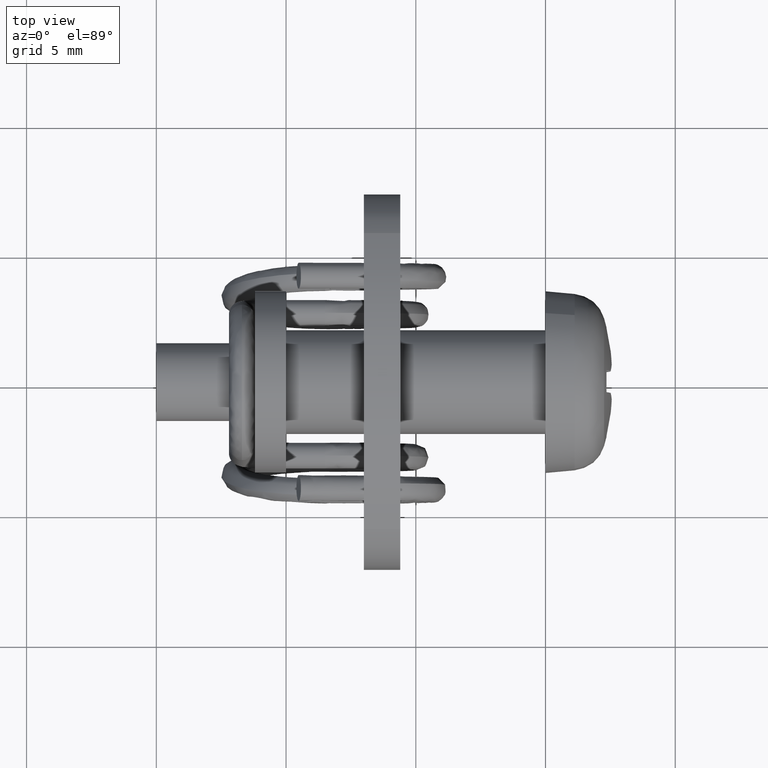
[diagram: clean part render]
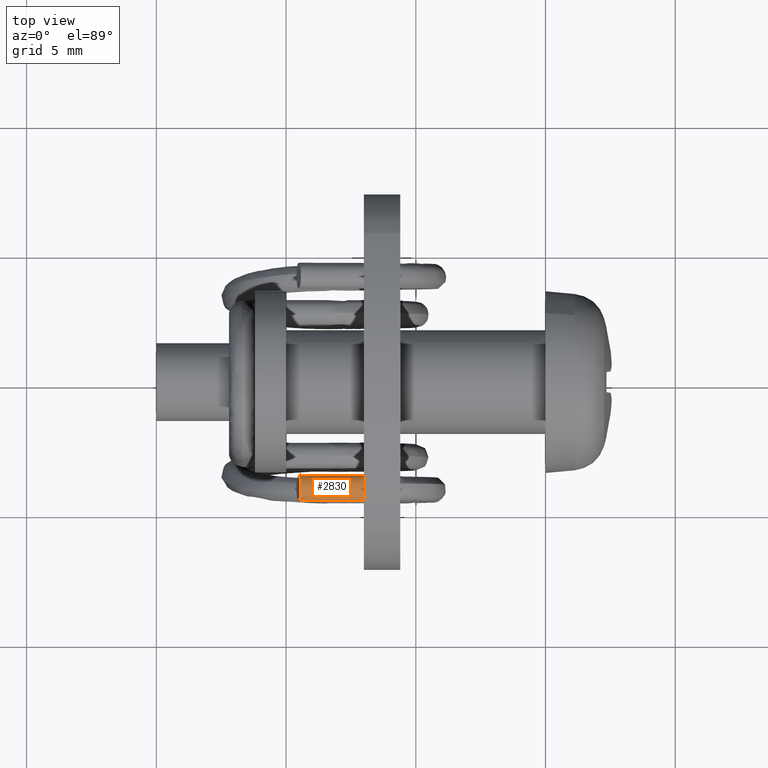
[diagram: same view with one face highlighted and labeled with its STEP entity id]
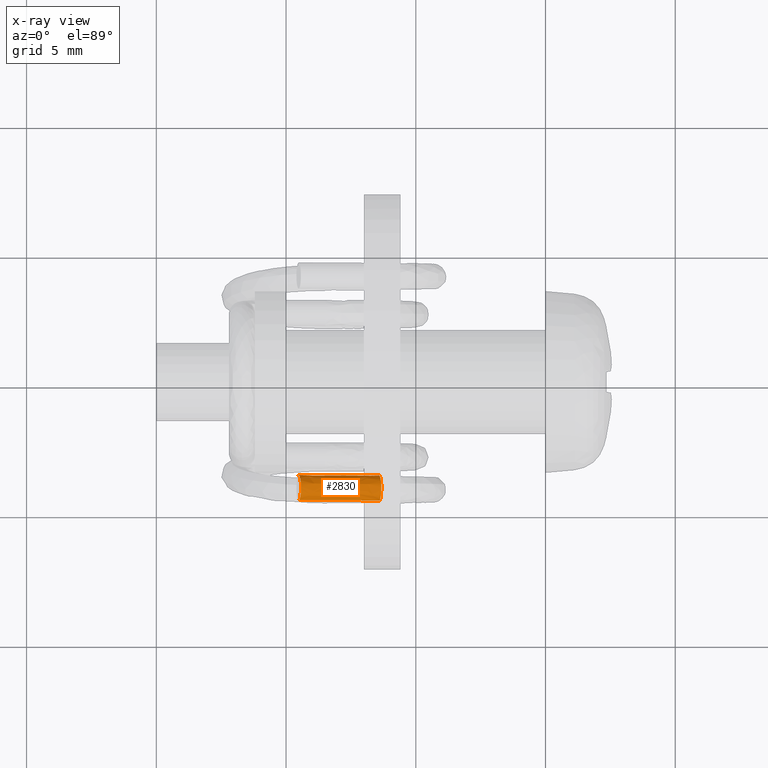
[diagram: x-ray of the same camera — body ghosted, the highlighted face saturated]
A machine part, top view. The second image highlights one B-rep face of the part: STEP entity #2830.
The next image is the same camera in x-ray: the body ghosted, the highlighted face saturated — about 1% of this face is hidden behind the body in this view.
In plain terms, the highlighted face is a freeform B-spline surface patch.
Its self-contained STEP definition (entity closure, byte-faithful):
#2688=CARTESIAN_POINT('',(-9.485742573667952,-4.565768063297207,0.843767149737986));
#2689=VERTEX_POINT('',#2688);
#2703=CARTESIAN_POINT('',(-9.432628150593137,-3.904279830635747,1.143995393117524));
#2704=VERTEX_POINT('',#2703);
#2705=CARTESIAN_POINT('',(-9.485742573667952,-4.565768063297207,0.843767149737986));
#2706=CARTESIAN_POINT('',(-9.483225706313352,-4.560919633947920,0.858033698299944));
#2707=CARTESIAN_POINT('',(-9.480764704202702,-4.555195830788005,0.871982097573852));
#2708=CARTESIAN_POINT('',(-9.400216916105908,-4.367857639553900,1.328508609331770));
#2709=CARTESIAN_POINT('',(-9.432628150593137,-3.904279830635747,1.143995393117524));
#2717=(BOUNDED_CURVE()B_SPLINE_CURVE(2,(#2705,#2706,#2707,#2708,#2709),.UNSPECIFIED.,.F.,.U.)B_SPLINE_CURVE_WITH_KNOTS((3,2,3),(0.239332771310247,0.250000000000000,0.500000000000000),.UNSPECIFIED.)CURVE()GEOMETRIC_REPRESENTATION_ITEM()RATIONAL_B_SPLINE_CURVE((0.976071632470520,0.987502564212957,1.0,0.707106781186548,1.0))REPRESENTATION_ITEM(''));
#2718=EDGE_CURVE('',#2689,#2704,#2717,.T.);
#2720=CARTESIAN_POINT('',(-9.540609303711973,-3.617467980443404,0.531170612980902));
#2721=VERTEX_POINT('',#2720);
#2722=CARTESIAN_POINT('',(-9.432628150593137,-3.904279830635747,1.143995393117524));
#2723=CARTESIAN_POINT('',(-9.463117561710048,-3.468189856761155,0.970422883626228));
#2724=CARTESIAN_POINT('',(-9.540609303711973,-3.617467980443404,0.531170612980902));
#2732=(BOUNDED_CURVE()B_SPLINE_CURVE(2,(#2722,#2723,#2724),.UNSPECIFIED.,.F.,.U.)B_SPLINE_CURVE_WITH_KNOTS((3,3),(0.500000000000000,0.739332771310455),.UNSPECIFIED.)CURVE()GEOMETRIC_REPRESENTATION_ITEM()RATIONAL_B_SPLINE_CURVE((1.0,0.719604216973348,0.976071632470965))REPRESENTATION_ITEM(''));
#2733=EDGE_CURVE('',#2704,#2721,#2732,.T.);
#2753=CARTESIAN_POINT('',(-6.311547236326741,-4.566800946190644,0.283656923087566));
#2754=CARTESIAN_POINT('',(-6.284694295586361,-4.517705741475147,0.435873443392320));
#2755=CARTESIAN_POINT('',(-6.264689192890868,-4.397205592936745,0.549146124186865));
#2756=CARTESIAN_POINT('',(-6.250917136321656,-4.252594770835170,0.627033029879800));
#2757=CARTESIAN_POINT('',(-6.248632361986579,-4.084349632791990,0.639736616223730));
#2758=CARTESIAN_POINT('',(-6.265071812244520,-3.783665863551966,0.546049857076166));
#2759=CARTESIAN_POINT('',(-6.285977866714784,-3.659434895410103,0.427298127379727));
#2760=CARTESIAN_POINT('',(-6.310695262577186,-3.590859999133292,0.287015229185512));
#2761=CARTESIAN_POINT('',(-6.340100363435791,-3.568948522576995,0.120217478759622));
#2762=CARTESIAN_POINT('',(-6.366426688128350,-3.618321888720326,-0.029012032582091));
#2763=CARTESIAN_POINT('',(-7.396081824688123,-4.566292425194948,0.474926460582581));
#2764=CARTESIAN_POINT('',(-7.371024996378242,-4.512274389859371,0.616949285279898));
#2765=CARTESIAN_POINT('',(-7.347763467036128,-4.410185368662953,0.748717882526427));
#2766=CARTESIAN_POINT('',(-7.334679461913863,-4.251136076091621,0.822680854033914));
#2767=CARTESIAN_POINT('',(-7.332687158462913,-4.083777043937356,0.833727092873196));
#2768=CARTESIAN_POINT('',(-7.350702078950771,-3.782299754859070,0.731104197074179));
#2769=CARTESIAN_POINT('',(-7.368116879275558,-3.653424039878617,0.632145347359363));
#2770=CARTESIAN_POINT('',(-7.396337346507450,-3.575213730470080,0.471980990122490));
#2771=CARTESIAN_POINT('',(-7.424927999303466,-3.570983799370982,0.309828901351950));
#2772=CARTESIAN_POINT('',(-7.450926436208242,-3.618347327232118,0.162455900205378));
#2773=CARTESIAN_POINT('',(-8.480618792587560,-4.566186408071228,0.666183110744032));
#2774=CARTESIAN_POINT('',(-8.453773222286024,-4.517191369573642,0.818357982430657));
#2775=CARTESIAN_POINT('',(-8.432012118403643,-4.404744915781157,0.941601603580251));
#2776=CARTESIAN_POINT('',(-8.418517546619979,-4.254223686658439,1.017905890788226));
#2777=CARTESIAN_POINT('',(-8.416644742064271,-4.085360491119807,1.028272146503327));
#2778=CARTESIAN_POINT('',(-8.434070792459114,-3.781073659799516,0.928984658192920));
#2779=CARTESIAN_POINT('',(-8.453826817233178,-3.653579574564659,0.816750146471426));
#2780=CARTESIAN_POINT('',(-8.479746573701505,-3.578269900561151,0.669638152015751));
#2781=CARTESIAN_POINT('',(-8.509090343501525,-3.565170778989682,0.503201532341087));
#2782=CARTESIAN_POINT('',(-8.535492462105184,-3.617794284418016,0.353547079300628));
#2783=CARTESIAN_POINT('',(-9.565170775487960,-4.565862477585510,0.857354277569372));
#2784=CARTESIAN_POINT('',(-9.538827663281047,-4.515199223855811,1.006677048190760));
#2785=CARTESIAN_POINT('',(-9.516661413037550,-4.405388357794456,1.132222348502012));
#2786=CARTESIAN_POINT('',(-9.503343841527808,-4.252004980237139,1.207518495665781));
#2787=CARTESIAN_POINT('',(-9.501414669880106,-4.084131655724792,1.218205919659738));
#2788=CARTESIAN_POINT('',(-9.518911028865171,-3.781718287983666,1.118522519950731));
#2789=CARTESIAN_POINT('',(-9.537930588370715,-3.654198430888086,1.010464672772348));
#2790=CARTESIAN_POINT('',(-9.564545866498042,-3.577744429922322,0.859406449978345));
#2791=CARTESIAN_POINT('',(-9.593699586685872,-3.566790032065148,0.694050893678258));
#2792=CARTESIAN_POINT('',(-9.620034226398346,-3.617605845549863,0.544776403311472));
#2793=B_SPLINE_SURFACE_WITH_KNOTS('',5,3,((#2753,#2763,#2773,#2783),(#2754,#2764,#2774,#2784),(#2755,#2765,#2775,#2785),(#2756,#2766,#2776,#2786),(#2757,#2767,#2777,#2787),(#2758,#2768,#2778,#2788),(#2759,#2769,#2779,#2789),(#2760,#2770,#2780,#2790),(#2761,#2771,#2781,#2791),(#2762,#2772,#2782,#2792)),.UNSPECIFIED.,.F.,.F.,.U.,(6,4,6),(4,4),(1.999512932181528,3.0,4.000487195550590),(0.0,3.303815319385207),.UNSPECIFIED.);
#2794=CARTESIAN_POINT('',(-6.388901196909250,-4.566524686647446,0.297688885898468));
#2795=VERTEX_POINT('',#2794);
#2796=CARTESIAN_POINT('',(-6.335783071428130,-3.905104269464093,0.597938229062452));
#2797=VERTEX_POINT('',#2796);
#2798=CARTESIAN_POINT('',(-6.388901196909250,-4.566524686647446,0.297688885898468));
#2799=CARTESIAN_POINT('',(-6.387223654088647,-4.563389885559518,0.307197974175564));
#2800=CARTESIAN_POINT('',(-6.385560943508927,-4.559912639032415,0.316622427581898));
#2801=CARTESIAN_POINT('',(-6.341742212784800,-4.457978151378932,0.564976978709306));
#2802=CARTESIAN_POINT('',(-6.318811654176610,-4.147849700203063,0.694554448449299));
#2803=CARTESIAN_POINT('',(-6.335783071428130,-3.905104269464093,0.597938229062452));
#2804=B_SPLINE_CURVE_WITH_KNOTS('',3,(#2798,#2799,#2800,#2801,#2802,#2803),.UNSPECIFIED.,.F.,.U.,(4,2,4),(0.240248661620843,0.250000000000000,0.500000000000000),.UNSPECIFIED.);
#2805=EDGE_CURVE('',#2795,#2797,#2804,.T.);
#2806=ORIENTED_EDGE('',*,*,#2805,.T.);
#2807=CARTESIAN_POINT('',(-6.443760522140609,-3.618360234748804,-0.014865451289451));
#2808=VERTEX_POINT('',#2807);
#2809=CARTESIAN_POINT('',(-6.335783071428130,-3.905104269464093,0.597938229062452));
#2810=CARTESIAN_POINT('',(-6.352092629330436,-3.671825128569239,0.505089894031037));
#2811=CARTESIAN_POINT('',(-6.402428147880101,-3.541160459556598,0.219425611566795));
#2812=CARTESIAN_POINT('',(-6.443760522140609,-3.618360234748804,-0.014865451289451));
#2813=B_SPLINE_CURVE_WITH_KNOTS('',3,(#2809,#2810,#2811,#2812),.UNSPECIFIED.,.F.,.U.,(4,4),(0.500000000000000,0.740248661620844),.UNSPECIFIED.);
#2814=EDGE_CURVE('',#2797,#2808,#2813,.T.);
#2815=ORIENTED_EDGE('',*,*,#2814,.T.);
#2816=CARTESIAN_POINT('',(-6.443760522140609,-3.618360234748804,-0.014865451289451));
#2817=CARTESIAN_POINT('',(-9.540609303711973,-3.617467980443404,0.531170612980902));
#2818=QUASI_UNIFORM_CURVE('',1,(#2816,#2817),.UNSPECIFIED.,.F.,.U.);
#2819=EDGE_CURVE('',#2808,#2721,#2818,.T.);
#2820=ORIENTED_EDGE('',*,*,#2819,.T.);
#2821=ORIENTED_EDGE('',*,*,#2733,.F.);
#2822=ORIENTED_EDGE('',*,*,#2718,.F.);
#2823=CARTESIAN_POINT('',(-6.388901196909250,-4.566524686647446,0.297688885898468));
#2824=CARTESIAN_POINT('',(-9.485742573667952,-4.565768063297207,0.843767149737986));
#2825=QUASI_UNIFORM_CURVE('',1,(#2823,#2824),.UNSPECIFIED.,.F.,.U.);
#2826=EDGE_CURVE('',#2795,#2689,#2825,.T.);
#2827=ORIENTED_EDGE('',*,*,#2826,.F.);
#2828=EDGE_LOOP('',(#2806,#2815,#2820,#2821,#2822,#2827));
#2829=FACE_OUTER_BOUND('',#2828,.T.);
#2830=ADVANCED_FACE('',(#2829),#2793,.T.);